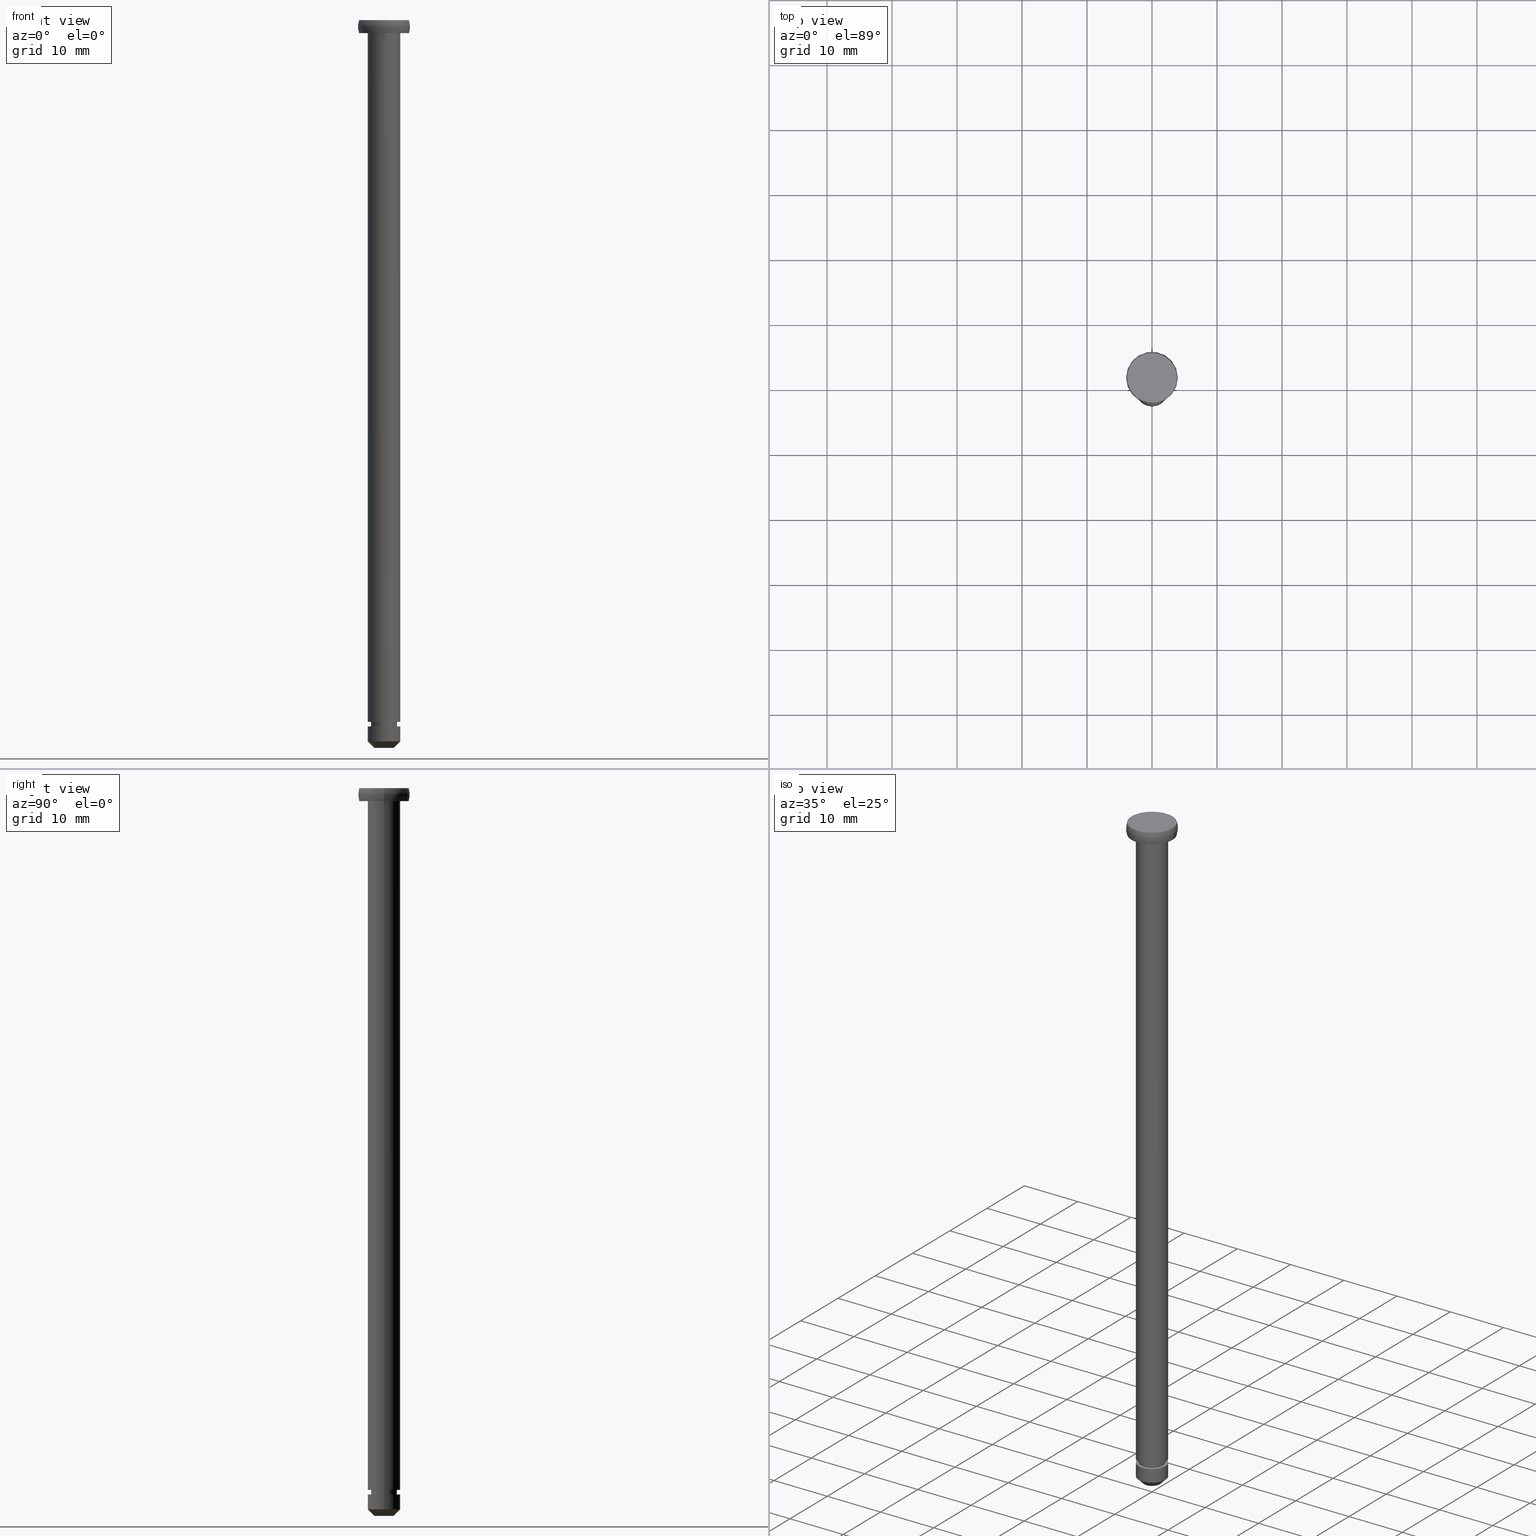
[diagram: canonical four-view strip — front | top / right | iso, engineering-drawing reading convention]
A machine part, canonical four-view strip (front | top / right | iso — engineering-drawing reading convention). The complete STEP part file that produces these views, byte-faithful:
ISO-10303-21;
HEADER;
FILE_DESCRIPTION (( 'STEP AP214' ),
    '1' );
FILE_NAME ('TH_121SUS_5_110.STEP',
    '2016-08-24T05:25:52',
    ( '' ),
    ( '' ),
    'SwSTEP 2.0',
    'SolidWorks 2015',
    '' );
FILE_SCHEMA (( 'AUTOMOTIVE_DESIGN' ));
ENDSEC;

DATA;
#1 = ORIENTED_EDGE ( 'NONE', *, *, #23, .T. ) ;
#2 = FILL_AREA_STYLE ('',( #293 ) ) ;
#3 = APPLICATION_CONTEXT ( 'automotive_design' ) ;
#4 = EDGE_CURVE ( 'NONE', #396, #7, #67, .T. ) ;
#5 = AXIS2_PLACEMENT_3D ( 'NONE', #357, #228, #389 ) ;
#6 = DIRECTION ( 'NONE',  ( -0.0000000000000000000, -0.0000000000000000000, 1.000000000000000000 ) ) ;
#7 = VERTEX_POINT ( 'NONE', #161 ) ;
#8 = ORIENTED_EDGE ( 'NONE', *, *, #203, .F. ) ;
#9 = FACE_OUTER_BOUND ( 'NONE', #383, .T. ) ;
#10 = ORIENTED_EDGE ( 'NONE', *, *, #375, .F. ) ;
#11 = CARTESIAN_POINT ( 'NONE',  ( 0.0000000000000000000, 0.0000000000000000000, -112.0000000360870000 ) ) ;
#12 = ADVANCED_FACE ( 'NONE', ( #435, #207 ), #83, .T. ) ;
#13 = DIRECTION ( 'NONE',  ( 0.0000000000000000000, 0.0000000000000000000, -1.000000000000000000 ) ) ;
#14 = ORIENTED_EDGE ( 'NONE', *, *, #260, .T. ) ;
#15 = AXIS2_PLACEMENT_3D ( 'NONE', #420, #334, #98 ) ;
#16 = CARTESIAN_POINT ( 'NONE',  ( 2.500000000000000000, 3.061616997868383100E-016, -108.7000000360870000 ) ) ;
#17 = ORIENTED_EDGE ( 'NONE', *, *, #128, .T. ) ;
#18 = ADVANCED_FACE ( 'NONE', ( #265 ), #159, .T. ) ;
#19 = EDGE_LOOP ( 'NONE', ( #230, #354, #84, #166 ) ) ;
#20 = UNCERTAINTY_MEASURE_WITH_UNIT (LENGTH_MEASURE( 1.000000000000000100E-005 ), #359, 'distance_accuracy_value', 'NONE');
#21 = DIRECTION ( 'NONE',  ( -1.000000000000000000, -1.224646799147353200E-016, 0.0000000000000000000 ) ) ;
#22 = DIRECTION ( 'NONE',  ( -1.000000000000000000, 0.0000000000000000000, 0.0000000000000000000 ) ) ;
#23 = EDGE_CURVE ( 'NONE', #149, #225, #208, .T. ) ;
#24 = ORIENTED_EDGE ( 'NONE', *, *, #28, .F. ) ;
#25 = AXIS2_PLACEMENT_3D ( 'NONE', #326, #247, #201 ) ;
#26 = VERTEX_POINT ( 'NONE', #448 ) ;
#27 = CARTESIAN_POINT ( 'NONE',  ( -2.000000000000000000, 0.0000000000000000000, -108.7000000360870000 ) ) ;
#28 = EDGE_CURVE ( 'NONE', #271, #26, #216, .T. ) ;
#29 = CIRCLE ( 'NONE', #184, 3.828427048553670400 ) ;
#30 = AXIS2_PLACEMENT_3D ( 'NONE', #294, #134, #189 ) ;
#31 = CIRCLE ( 'NONE', #205, 3.000000000000000000 ) ;
#32 = DIRECTION ( 'NONE',  ( 0.0000000000000000000, 0.0000000000000000000, -1.000000000000000000 ) ) ;
#33 = ADVANCED_BREP_SHAPE_REPRESENTATION ( '', ( #120, #298 ), #275 ) ;
#34 = DIRECTION ( 'NONE',  ( 0.0000000000000000000, 0.0000000000000000000, -1.000000000000000000 ) ) ;
#35 = DIRECTION ( 'NONE',  ( 0.0000000000000000000, 0.0000000000000000000, 1.000000000000000000 ) ) ;
#36 = AXIS2_PLACEMENT_3D ( 'NONE', #48, #350, #22 ) ;
#37 = SHAPE_DEFINITION_REPRESENTATION ( #105, #258 ) ;
#38 = CARTESIAN_POINT ( 'NONE',  ( 0.0000000000000000000, 0.0000000000000000000, 2.155049632374812200E-007 ) ) ;
#39 = DIRECTION ( 'NONE',  ( -1.000000000000000000, 0.0000000000000000000, 0.0000000000000000000 ) ) ;
#40 = DIRECTION ( 'NONE',  ( 0.0000000000000000000, 0.0000000000000000000, -1.000000000000000000 ) ) ;
#41 = VERTEX_POINT ( 'NONE', #16 ) ;
#42 = CARTESIAN_POINT ( 'NONE',  ( -1.499999999999999600, 1.836970198721029400E-016, -112.0000000360870000 ) ) ;
#43 = FACE_OUTER_BOUND ( 'NONE', #19, .T. ) ;
#44 = ADVANCED_FACE ( 'NONE', ( #132 ), #304, .T. ) ;
#45 = CARTESIAN_POINT ( 'NONE',  ( 2.500000000000000000, 3.061616997868383100E-016, 2.155049632374841000E-007 ) ) ;
#46 = DIRECTION ( 'NONE',  ( 0.0000000000000000000, 0.0000000000000000000, -1.000000000000000000 ) ) ;
#47 = EDGE_LOOP ( 'NONE', ( #453, #302 ) ) ;
#48 = CARTESIAN_POINT ( 'NONE',  ( 0.0000000000000000000, 0.0000000000000000000, 2.155049632374841000E-007 ) ) ;
#49 = EDGE_CURVE ( 'NONE', #149, #281, #289, .T. ) ;
#50 =( GEOMETRIC_REPRESENTATION_CONTEXT ( 3 ) GLOBAL_UNCERTAINTY_ASSIGNED_CONTEXT ( ( #68 ) ) GLOBAL_UNIT_ASSIGNED_CONTEXT ( ( #160, #371, #369 ) ) REPRESENTATION_CONTEXT ( 'NONE', 'WORKASPACE' ) );
#51 = ORIENTED_EDGE ( 'NONE', *, *, #366, .F. ) ;
#52 = ORIENTED_EDGE ( 'NONE', *, *, #176, .F. ) ;
#53 = ORIENTED_EDGE ( 'NONE', *, *, #366, .T. ) ;
#54 = EDGE_CURVE ( 'NONE', #229, #281, #107, .T. ) ;
#55 = AXIS2_PLACEMENT_3D ( 'NONE', #332, #34, #400 ) ;
#56 = ADVANCED_FACE ( 'NONE', ( #348 ), #314, .T. ) ;
#57 = CLOSED_SHELL ( 'NONE', ( #89, #18, #346, #211, #58, #331, #142, #44, #56, #62, #59, #437, #12, #245, #424 ) ) ;
#58 = ADVANCED_FACE ( 'NONE', ( #97 ), #269, .T. ) ;
#59 = ADVANCED_FACE ( 'NONE', ( #305, #231 ), #165, .T. ) ;
#60 = PRESENTATION_LAYER_ASSIGNMENT (  '', '', ( #458 ) ) ;
#61 = EDGE_LOOP ( 'NONE', ( #306, #53 ) ) ;
#62 = ADVANCED_FACE ( 'NONE', ( #355 ), #141, .T. ) ;
#63 = DIRECTION ( 'NONE',  ( 0.0000000000000000000, 0.0000000000000000000, -1.000000000000000000 ) ) ;
#64 = ORIENTED_EDGE ( 'NONE', *, *, #403, .F. ) ;
#65 = CARTESIAN_POINT ( 'NONE',  ( 1.499999999999999600, 0.0000000000000000000, -112.0000000360870000 ) ) ;
#66 = CIRCLE ( 'NONE', #55, 2.500000000000000000 ) ;
#67 = CIRCLE ( 'NONE', #123, 3.000000000000000400 ) ;
#68 = UNCERTAINTY_MEASURE_WITH_UNIT (LENGTH_MEASURE( 1.000000000000000100E-005 ), #160, 'distance_accuracy_value', 'NONE');
#69 = VERTEX_POINT ( 'NONE', #372 ) ;
#70 = CARTESIAN_POINT ( 'NONE',  ( 2.500000000000000000, 3.061616997868383100E-016, -2.000000018043410300 ) ) ;
#71 = EDGE_CURVE ( 'NONE', #69, #121, #335, .T. ) ;
#72 = AXIS2_PLACEMENT_3D ( 'NONE', #178, #300, #118 ) ;
#73 = CARTESIAN_POINT ( 'NONE',  ( -3.828427118366850100, 0.0000000000000000000, -2.000000018043500000 ) ) ;
#74 = VERTEX_POINT ( 'NONE', #329 ) ;
#75 = PLANE ( 'NONE',  #177 ) ;
#76 = ORIENTED_EDGE ( 'NONE', *, *, #102, .T. ) ;
#77 = DIRECTION ( 'NONE',  ( -1.000000000000000000, 0.0000000000000000000, 0.0000000000000000000 ) ) ;
#78 = EDGE_CURVE ( 'NONE', #74, #271, #236, .T. ) ;
#79 = AXIS2_PLACEMENT_3D ( 'NONE', #175, #356, #262 ) ;
#80 =( NAMED_UNIT ( * ) PLANE_ANGLE_UNIT ( ) SI_UNIT ( $, .RADIAN. ) );
#81 = CIRCLE ( 'NONE', #30, 2.500000000000000000 ) ;
#82 = CIRCLE ( 'NONE', #452, 2.000000000000000000 ) ;
#83 = PLANE ( 'NONE',  #197 ) ;
#84 = ORIENTED_EDGE ( 'NONE', *, *, #421, .T. ) ;
#85 = MECHANICAL_DESIGN_GEOMETRIC_PRESENTATION_REPRESENTATION (  '', ( #458 ), #110 ) ;
#86 = VECTOR ( 'NONE', #311, 1000.000000000000000 ) ;
#87 = VERTEX_POINT ( 'NONE', #188 ) ;
#88 = ORIENTED_EDGE ( 'NONE', *, *, #274, .F. ) ;
#89 = ADVANCED_FACE ( 'NONE', ( #347 ), #167, .T. ) ;
#90 = DIRECTION ( 'NONE',  ( -1.224646799147353200E-016, 1.000000000000000000, 0.0000000000000000000 ) ) ;
#91 = EDGE_LOOP ( 'NONE', ( #111, #181, #17, #193 ) ) ;
#92 = ORIENTED_EDGE ( 'NONE', *, *, #441, .T. ) ;
#93 = SURFACE_STYLE_FILL_AREA ( #297 ) ;
#94 = EDGE_CURVE ( 'NONE', #415, #26, #456, .T. ) ;
#95 = PRODUCT_DEFINITION ( 'UNKNOWN', '', #224, #209 ) ;
#96 = CARTESIAN_POINT ( 'NONE',  ( 0.0000000000000000000, 0.0000000000000000000, -111.0000000360870000 ) ) ;
#97 = FACE_OUTER_BOUND ( 'NONE', #157, .T. ) ;
#98 = DIRECTION ( 'NONE',  ( -1.000000000000000000, 0.0000000000000000000, 0.0000000000000000000 ) ) ;
#99 = ORIENTED_EDGE ( 'NONE', *, *, #155, .F. ) ;
#100 = EDGE_LOOP ( 'NONE', ( #235, #309 ) ) ;
#101 = CARTESIAN_POINT ( 'NONE',  ( 0.0000000000000000000, 0.0000000000000000000, -108.7000000360870000 ) ) ;
#102 = EDGE_CURVE ( 'NONE', #74, #415, #406, .T. ) ;
#103 = AXIS2_PLACEMENT_3D ( 'NONE', #101, #219, #240 ) ;
#104 = FILL_AREA_STYLE_COLOUR ( '', #195 ) ;
#105 = PRODUCT_DEFINITION_SHAPE ( 'NONE', 'NONE',  #95 ) ;
#106 = CARTESIAN_POINT ( 'NONE',  ( 0.0000000000000000000, 0.0000000000000000000, 2.155049632374812200E-007 ) ) ;
#107 = CIRCLE ( 'NONE', #286, 2.499999999999998700 ) ;
#108 = DIRECTION ( 'NONE',  ( 0.0000000000000000000, 0.0000000000000000000, -1.000000000000000000 ) ) ;
#109 =( LENGTH_UNIT ( ) NAMED_UNIT ( * ) SI_UNIT ( .MILLI., .METRE. ) );
#110 =( GEOMETRIC_REPRESENTATION_CONTEXT ( 3 ) GLOBAL_UNCERTAINTY_ASSIGNED_CONTEXT ( ( #20 ) ) GLOBAL_UNIT_ASSIGNED_CONTEXT ( ( #359, #80, #148 ) ) REPRESENTATION_CONTEXT ( 'NONE', 'WORKASPACE' ) );
#111 = ORIENTED_EDGE ( 'NONE', *, *, #23, .F. ) ;
#112 = FACE_OUTER_BOUND ( 'NONE', #423, .T. ) ;
#113 = APPLICATION_PROTOCOL_DEFINITION ( 'draft international standard', 'automotive_design', 1998, #451 ) ;
#114 = CARTESIAN_POINT ( 'NONE',  ( 2.500000000000000000, 0.0000000000000000000, -2.000000018043454700 ) ) ;
#115 = ORIENTED_EDGE ( 'NONE', *, *, #320, .T. ) ;
#116 = CARTESIAN_POINT ( 'NONE',  ( 0.0000000000000000000, 0.0000000000000000000, -108.7000000360870000 ) ) ;
#117 = ORIENTED_EDGE ( 'NONE', *, *, #4, .F. ) ;
#118 = DIRECTION ( 'NONE',  ( 1.000000000000000000, 0.0000000000000000000, 0.0000000000000000000 ) ) ;
#119 = DIRECTION ( 'NONE',  ( -1.000000000000000000, 0.0000000000000000000, 0.0000000000000000000 ) ) ;
#120 = MANIFOLD_SOLID_BREP ( '��]1', #57 ) ;
#121 = VERTEX_POINT ( 'NONE', #273 ) ;
#122 = CARTESIAN_POINT ( 'NONE',  ( 0.0000000000000000000, 0.0000000000000000000, 2.155049632374841000E-007 ) ) ;
#123 = AXIS2_PLACEMENT_3D ( 'NONE', #127, #90, #21 ) ;
#124 = APPLICATION_PROTOCOL_DEFINITION ( 'draft international standard', 'automotive_design', 1998, #307 ) ;
#125 = CONTEXT_DEPENDENT_SHAPE_REPRESENTATION ( #272, #374 ) ;
#126 = DIRECTION ( 'NONE',  ( 0.0000000000000000000, 0.0000000000000000000, -1.000000000000000000 ) ) ;
#127 = CARTESIAN_POINT ( 'NONE',  ( 1.000000000000000000, 1.224646799147353200E-016, -1.000000000000000000 ) ) ;
#128 = EDGE_CURVE ( 'NONE', #281, #229, #308, .T. ) ;
#129 = VECTOR ( 'NONE', #234, 1000.000000000000000 ) ;
#130 = DIRECTION ( 'NONE',  ( -1.000000000000000000, 0.0000000000000000000, -0.0000000000000000000 ) ) ;
#131 = ORIENTED_EDGE ( 'NONE', *, *, #155, .T. ) ;
#132 = FACE_OUTER_BOUND ( 'NONE', #226, .T. ) ;
#133 = ORIENTED_EDGE ( 'NONE', *, *, #421, .F. ) ;
#134 = DIRECTION ( 'NONE',  ( 0.0000000000000000000, 0.0000000000000000000, -1.000000000000000000 ) ) ;
#135 = SHAPE_DEFINITION_REPRESENTATION ( #280, #409 ) ;
#136 = EDGE_LOOP ( 'NONE', ( #117, #131, #433, #52 ) ) ;
#137 = AXIS2_PLACEMENT_3D ( 'NONE', #292, #108, #119 ) ;
#138 = DIRECTION ( 'NONE',  ( -1.000000000000000000, 0.0000000000000000000, 0.0000000000000000000 ) ) ;
#139 = SURFACE_STYLE_USAGE ( .BOTH. , #146 ) ;
#140 = CIRCLE ( 'NONE', #158, 2.500000000000000000 ) ;
#141 = CYLINDRICAL_SURFACE ( 'NONE', #15, 2.499999999999999600 ) ;
#142 = ADVANCED_FACE ( 'NONE', ( #9 ), #192, .T. ) ;
#143 = CARTESIAN_POINT ( 'NONE',  ( 0.0000000000000000000, 0.0000000000000000000, -108.0000000360869900 ) ) ;
#144 = CARTESIAN_POINT ( 'NONE',  ( 0.0000000000000000000, 0.0000000000000000000, 0.0000000000000000000 ) ) ;
#145 = PRODUCT_DEFINITION ( 'UNKNOWN', '', #170, #438 ) ;
#146 = SURFACE_SIDE_STYLE ('',( #93 ) ) ;
#147 = DIRECTION ( 'NONE',  ( 0.0000000000000000000, 0.0000000000000000000, -1.000000000000000000 ) ) ;
#148 =( NAMED_UNIT ( * ) SI_UNIT ( $, .STERADIAN. ) SOLID_ANGLE_UNIT ( ) );
#149 = VERTEX_POINT ( 'NONE', #402 ) ;
#150 = CARTESIAN_POINT ( 'NONE',  ( 0.0000000000000000000, 0.0000000000000000000, -108.7000000360870000 ) ) ;
#151 =( NAMED_UNIT ( * ) SI_UNIT ( $, .STERADIAN. ) SOLID_ANGLE_UNIT ( ) );
#152 = FACE_BOUND ( 'NONE', #218, .T. ) ;
#153 = ORIENTED_EDGE ( 'NONE', *, *, #54, .T. ) ;
#154 = DIRECTION ( 'NONE',  ( -1.000000000000000000, 0.0000000000000000000, 0.0000000000000000000 ) ) ;
#155 = EDGE_CURVE ( 'NONE', #396, #301, #29, .T. ) ;
#156 = CARTESIAN_POINT ( 'NONE',  ( 0.0000000000000000000, 0.0000000000000000000, -2.000000018043500000 ) ) ;
#157 = EDGE_LOOP ( 'NONE', ( #115, #378, #88, #221 ) ) ;
#158 = AXIS2_PLACEMENT_3D ( 'NONE', #358, #462, #313 ) ;
#159 = CYLINDRICAL_SURFACE ( 'NONE', #250, 2.000000000000000000 ) ;
#160 =( LENGTH_UNIT ( ) NAMED_UNIT ( * ) SI_UNIT ( .MILLI., .METRE. ) );
#161 = CARTESIAN_POINT ( 'NONE',  ( 3.828427118366850100, 4.688471016276889000E-016, -2.000000018043500000 ) ) ;
#162 = ORIENTED_EDGE ( 'NONE', *, *, #102, .F. ) ;
#163 = FACE_OUTER_BOUND ( 'NONE', #136, .T. ) ;
#164 = VECTOR ( 'NONE', #397, 1000.000000000000000 ) ;
#165 = PLANE ( 'NONE',  #434 ) ;
#166 = ORIENTED_EDGE ( 'NONE', *, *, #260, .F. ) ;
#167 = CYLINDRICAL_SURFACE ( 'NONE', #36, 2.500000000000000000 ) ;
#168 = DIRECTION ( 'NONE',  ( 0.0000000000000000000, 0.0000000000000000000, -1.000000000000000000 ) ) ;
#169 = AXIS2_PLACEMENT_3D ( 'NONE', #422, #368, #199 ) ;
#170 = PRODUCT_DEFINITION_FORMATION_WITH_SPECIFIED_SOURCE ( 'ANY', '', #363, .NOT_KNOWN. ) ;
#171 = ORIENTED_EDGE ( 'NONE', *, *, #78, .F. ) ;
#172 = CARTESIAN_POINT ( 'NONE',  ( 2.500000000000000000, 0.0000000000000000000, -108.7000000360870000 ) ) ;
#173 = DIRECTION ( 'NONE',  ( -1.000000000000000000, 0.0000000000000000000, 0.0000000000000000000 ) ) ;
#174 = CARTESIAN_POINT ( 'NONE',  ( -2.500000000000000000, 0.0000000000000000000, -108.0000000360869900 ) ) ;
#175 = CARTESIAN_POINT ( 'NONE',  ( 0.0000000000000000000, 0.0000000000000000000, 2.155049632374841000E-007 ) ) ;
#176 = EDGE_CURVE ( 'NONE', #7, #447, #380, .T. ) ;
#177 = AXIS2_PLACEMENT_3D ( 'NONE', #114, #440, #463 ) ;
#178 = CARTESIAN_POINT ( 'NONE',  ( 0.0000000000000000000, 0.0000000000000000000, 0.0000000000000000000 ) ) ;
#179 =( NAMED_UNIT ( * ) PLANE_ANGLE_UNIT ( ) SI_UNIT ( $, .RADIAN. ) );
#180 = ORIENTED_EDGE ( 'NONE', *, *, #94, .F. ) ;
#181 = ORIENTED_EDGE ( 'NONE', *, *, #49, .T. ) ;
#182 = CARTESIAN_POINT ( 'NONE',  ( 3.828427048553670400, 0.0000000000000000000, 2.155049632374826500E-007 ) ) ;
#183 = DIRECTION ( 'NONE',  ( 0.0000000000000000000, 0.0000000000000000000, -1.000000000000000000 ) ) ;
#184 = AXIS2_PLACEMENT_3D ( 'NONE', #38, #147, #196 ) ;
#185 = CARTESIAN_POINT ( 'NONE',  ( 0.0000000000000000000, 0.0000000000000000000, -112.0000000360870000 ) ) ;
#186 = DIRECTION ( 'NONE',  ( -1.000000000000000000, 0.0000000000000000000, 0.0000000000000000000 ) ) ;
#187 = ORIENTED_EDGE ( 'NONE', *, *, #78, .T. ) ;
#188 = CARTESIAN_POINT ( 'NONE',  ( -2.000000000000000000, 0.0000000000000000000, -108.0000000360869900 ) ) ;
#189 = DIRECTION ( 'NONE',  ( -1.000000000000000000, 0.0000000000000000000, 0.0000000000000000000 ) ) ;
#190 = DIRECTION ( 'NONE',  ( 0.0000000000000000000, 0.0000000000000000000, -1.000000000000000000 ) ) ;
#191 = DIRECTION ( 'NONE',  ( 1.000000000000000000, 0.0000000000000000000, 0.0000000000000000000 ) ) ;
#192 = PLANE ( 'NONE',  #214 ) ;
#193 = ORIENTED_EDGE ( 'NONE', *, *, #441, .F. ) ;
#194 = ORIENTED_EDGE ( 'NONE', *, *, #239, .T. ) ;
#195 = COLOUR_RGB ( '',0.7921568627450980000, 0.8196078431372548800, 0.9333333333333333500 ) ;
#196 = DIRECTION ( 'NONE',  ( -1.000000000000000000, 0.0000000000000000000, 0.0000000000000000000 ) ) ;
#197 = AXIS2_PLACEMENT_3D ( 'NONE', #379, #443, #130 ) ;
#198 = PRODUCT_RELATED_PRODUCT_CATEGORY ( 'part', '', ( #363 ) ) ;
#199 = DIRECTION ( 'NONE',  ( -1.000000000000000000, 0.0000000000000000000, 0.0000000000000000000 ) ) ;
#200 = DIRECTION ( 'NONE',  ( -0.7071067811865469100, 8.659560562354925500E-017, 0.7071067811865482400 ) ) ;
#201 = DIRECTION ( 'NONE',  ( 1.000000000000000000, 0.0000000000000000000, 0.0000000000000000000 ) ) ;
#202 = DIRECTION ( 'NONE',  ( 0.0000000000000000000, 0.0000000000000000000, -1.000000000000000000 ) ) ;
#203 = EDGE_CURVE ( 'NONE', #225, #149, #237, .T. ) ;
#204 = VECTOR ( 'NONE', #13, 1000.000000000000000 ) ;
#205 = AXIS2_PLACEMENT_3D ( 'NONE', #360, #393, #212 ) ;
#206 = ORIENTED_EDGE ( 'NONE', *, *, #203, .T. ) ;
#207 = FACE_BOUND ( 'NONE', #220, .T. ) ;
#208 = CIRCLE ( 'NONE', #223, 1.499999999999999600 ) ;
#209 = PRODUCT_DEFINITION_CONTEXT ( 'detailed design', #451, 'design' ) ;
#210 = ORIENTED_EDGE ( 'NONE', *, *, #54, .F. ) ;
#211 = ADVANCED_FACE ( 'NONE', ( #317 ), #388, .T. ) ;
#212 = DIRECTION ( 'NONE',  ( 0.0000000000000000000, 0.0000000000000000000, -1.000000000000000000 ) ) ;
#213 = ORIENTED_EDGE ( 'NONE', *, *, #296, .F. ) ;
#214 = AXIS2_PLACEMENT_3D ( 'NONE', #182, #401, #268 ) ;
#215 = COLOUR_RGB ( '',0.7921568627450980000, 0.8196078431372548800, 0.9333333333333333500 ) ;
#216 = CIRCLE ( 'NONE', #169, 2.500000000000000000 ) ;
#217 = DIRECTION ( 'NONE',  ( -1.000000000000000000, 0.0000000000000000000, 0.0000000000000000000 ) ) ;
#218 = EDGE_LOOP ( 'NONE', ( #162, #432 ) ) ;
#219 = DIRECTION ( 'NONE',  ( 0.0000000000000000000, 0.0000000000000000000, -1.000000000000000000 ) ) ;
#220 = EDGE_LOOP ( 'NONE', ( #427, #213 ) ) ;
#221 = ORIENTED_EDGE ( 'NONE', *, *, #464, .F. ) ;
#222 = UNCERTAINTY_MEASURE_WITH_UNIT (LENGTH_MEASURE( 1.000000000000000100E-005 ), #109, 'distance_accuracy_value', 'NONE');
#223 = AXIS2_PLACEMENT_3D ( 'NONE', #414, #338, #408 ) ;
#224 = PRODUCT_DEFINITION_FORMATION_WITH_SPECIFIED_SOURCE ( 'ANY', '', #425, .NOT_KNOWN. ) ;
#225 = VERTEX_POINT ( 'NONE', #270 ) ;
#226 = EDGE_LOOP ( 'NONE', ( #206, #1 ) ) ;
#227 = DIRECTION ( 'NONE',  ( 0.0000000000000000000, 0.0000000000000000000, 1.000000000000000000 ) ) ;
#228 = DIRECTION ( 'NONE',  ( 0.0000000000000000000, 0.0000000000000000000, -1.000000000000000000 ) ) ;
#229 = VERTEX_POINT ( 'NONE', #266 ) ;
#230 = ORIENTED_EDGE ( 'NONE', *, *, #71, .F. ) ;
#231 = FACE_OUTER_BOUND ( 'NONE', #47, .T. ) ;
#232 = SURFACE_STYLE_USAGE ( .BOTH. , #295 ) ;
#233 = DIRECTION ( 'NONE',  ( 0.0000000000000000000, 0.0000000000000000000, -1.000000000000000000 ) ) ;
#234 = DIRECTION ( 'NONE',  ( 0.7071067811865469100, 0.0000000000000000000, 0.7071067811865482400 ) ) ;
#235 = ORIENTED_EDGE ( 'NONE', *, *, #274, .T. ) ;
#236 = LINE ( 'NONE', #242, #284 ) ;
#237 = CIRCLE ( 'NONE', #267, 1.499999999999999600 ) ;
#238 = CYLINDRICAL_SURFACE ( 'NONE', #261, 2.000000000000000000 ) ;
#239 = EDGE_CURVE ( 'NONE', #439, #281, #390, .T. ) ;
#240 = DIRECTION ( 'NONE',  ( -1.000000000000000000, 0.0000000000000000000, 0.0000000000000000000 ) ) ;
#241 = AXIS2_PLACEMENT_3D ( 'NONE', #150, #40, #461 ) ;
#242 = CARTESIAN_POINT ( 'NONE',  ( -2.500000000000000000, 0.0000000000000000000, 2.155049632374841000E-007 ) ) ;
#243 = DIRECTION ( 'NONE',  ( 1.000000000000000000, 0.0000000000000000000, 0.0000000000000000000 ) ) ;
#244 = AXIS2_PLACEMENT_3D ( 'NONE', #364, #190, #325 ) ;
#245 = ADVANCED_FACE ( 'NONE', ( #419 ), #377, .T. ) ;
#246 = VECTOR ( 'NONE', #200, 1000.000000000000000 ) ;
#247 = DIRECTION ( 'NONE',  ( 0.0000000000000000000, 0.0000000000000000000, 1.000000000000000000 ) ) ;
#248 = CIRCLE ( 'NONE', #241, 2.500000000000000000 ) ;
#249 = DIRECTION ( 'NONE',  ( -1.000000000000000000, 0.0000000000000000000, -0.0000000000000000000 ) ) ;
#250 = AXIS2_PLACEMENT_3D ( 'NONE', #122, #252, #457 ) ;
#251 = PRODUCT_RELATED_PRODUCT_CATEGORY ( 'part', '', ( #425 ) ) ;
#252 = DIRECTION ( 'NONE',  ( 0.0000000000000000000, 0.0000000000000000000, -1.000000000000000000 ) ) ;
#253 =( NAMED_UNIT ( * ) PLANE_ANGLE_UNIT ( ) SI_UNIT ( $, .RADIAN. ) );
#254 = CARTESIAN_POINT ( 'NONE',  ( -2.499999999999998700, 3.061616997868381200E-016, -111.0000000360870000 ) ) ;
#255 = CIRCLE ( 'NONE', #430, 3.828427048553670400 ) ;
#256 = CARTESIAN_POINT ( 'NONE',  ( 0.0000000000000000000, 0.0000000000000000000, 0.0000000000000000000 ) ) ;
#257 = CIRCLE ( 'NONE', #103, 2.000000000000000000 ) ;
#258 = SHAPE_REPRESENTATION ( 'shaft', ( #298 ), #275 ) ;
#259 = CARTESIAN_POINT ( 'NONE',  ( -3.828427048553670400, 0.0000000000000000000, 2.155049632374812200E-007 ) ) ;
#260 = EDGE_CURVE ( 'NONE', #121, #399, #370, .T. ) ;
#261 = AXIS2_PLACEMENT_3D ( 'NONE', #436, #404, #322 ) ;
#262 = DIRECTION ( 'NONE',  ( -1.000000000000000000, 0.0000000000000000000, 0.0000000000000000000 ) ) ;
#263 = PRESENTATION_STYLE_ASSIGNMENT (( #232 ) ) ;
#264 = CYLINDRICAL_SURFACE ( 'NONE', #79, 2.499999999999999600 ) ;
#265 = FACE_OUTER_BOUND ( 'NONE', #279, .T. ) ;
#266 = CARTESIAN_POINT ( 'NONE',  ( 2.499999999999998700, 0.0000000000000000000, -111.0000000360870000 ) ) ;
#267 = AXIS2_PLACEMENT_3D ( 'NONE', #327, #285, #186 ) ;
#268 = DIRECTION ( 'NONE',  ( 1.000000000000000000, 0.0000000000000000000, 0.0000000000000000000 ) ) ;
#269 = TOROIDAL_SURFACE ( 'NONE', #385, 1.000000000000000000, 3.000000000000000400 ) ;
#270 = CARTESIAN_POINT ( 'NONE',  ( 1.499999999999999600, 0.0000000000000000000, -112.0000000360870000 ) ) ;
#271 = VERTEX_POINT ( 'NONE', #174 ) ;
#272 =( REPRESENTATION_RELATIONSHIP ('NONE','NONE', #409, #258 ) REPRESENTATION_RELATIONSHIP_WITH_TRANSFORMATION ( #412 )SHAPE_REPRESENTATION_RELATIONSHIP( ) );
#273 = CARTESIAN_POINT ( 'NONE',  ( 2.000000000000000000, 2.449293598294706400E-016, -108.7000000360870000 ) ) ;
#274 = EDGE_CURVE ( 'NONE', #447, #7, #282, .T. ) ;
#275 =( GEOMETRIC_REPRESENTATION_CONTEXT ( 3 ) GLOBAL_UNCERTAINTY_ASSIGNED_CONTEXT ( ( #222 ) ) GLOBAL_UNIT_ASSIGNED_CONTEXT ( ( #109, #253, #426 ) ) REPRESENTATION_CONTEXT ( 'NONE', 'WORKASPACE' ) );
#276 = CARTESIAN_POINT ( 'NONE',  ( 0.0000000000000000000, 0.0000000000000000000, -1.000000000000000000 ) ) ;
#277 = DIRECTION ( 'NONE',  ( 1.000000000000000000, 0.0000000000000000000, 0.0000000000000000000 ) ) ;
#278 = AXIS2_PLACEMENT_3D ( 'NONE', #185, #365, #191 ) ;
#279 = EDGE_LOOP ( 'NONE', ( #288, #459, #64, #133 ) ) ;
#280 = PRODUCT_DEFINITION_SHAPE ( 'NONE', 'NONE',  #145 ) ;
#281 = VERTEX_POINT ( 'NONE', #254 ) ;
#282 = CIRCLE ( 'NONE', #303, 3.828427118366850100 ) ;
#283 = DIRECTION ( 'NONE',  ( 0.0000000000000000000, 0.0000000000000000000, -1.000000000000000000 ) ) ;
#284 = VECTOR ( 'NONE', #202, 1000.000000000000000 ) ;
#285 = DIRECTION ( 'NONE',  ( 0.0000000000000000000, 0.0000000000000000000, -1.000000000000000000 ) ) ;
#286 = AXIS2_PLACEMENT_3D ( 'NONE', #96, #168, #154 ) ;
#287 =( LENGTH_UNIT ( ) NAMED_UNIT ( * ) SI_UNIT ( .MILLI., .METRE. ) );
#288 = ORIENTED_EDGE ( 'NONE', *, *, #342, .T. ) ;
#289 = LINE ( 'NONE', #42, #246 ) ;
#290 = APPLICATION_PROTOCOL_DEFINITION ( 'draft international standard', 'automotive_design', 1998, #446 ) ;
#291 = DIRECTION ( 'NONE',  ( 0.0000000000000000000, 0.0000000000000000000, -1.000000000000000000 ) ) ;
#292 = CARTESIAN_POINT ( 'NONE',  ( 0.0000000000000000000, 0.0000000000000000000, -111.0000000360870000 ) ) ;
#293 = FILL_AREA_STYLE_COLOUR ( '', #215 ) ;
#294 = CARTESIAN_POINT ( 'NONE',  ( 0.0000000000000000000, 0.0000000000000000000, -2.000000018043410300 ) ) ;
#295 = SURFACE_SIDE_STYLE ('',( #386 ) ) ;
#296 = EDGE_CURVE ( 'NONE', #69, #87, #343, .T. ) ;
#297 = FILL_AREA_STYLE ('',( #104 ) ) ;
#298 = AXIS2_PLACEMENT_3D ( 'NONE', #144, #227, #277 ) ;
#299 = ORIENTED_EDGE ( 'NONE', *, *, #403, .T. ) ;
#300 = DIRECTION ( 'NONE',  ( 0.0000000000000000000, 0.0000000000000000000, 1.000000000000000000 ) ) ;
#301 = VERTEX_POINT ( 'NONE', #259 ) ;
#302 = ORIENTED_EDGE ( 'NONE', *, *, #450, .F. ) ;
#303 = AXIS2_PLACEMENT_3D ( 'NONE', #156, #319, #217 ) ;
#304 = PLANE ( 'NONE',  #312 ) ;
#305 = FACE_BOUND ( 'NONE', #382, .T. ) ;
#306 = ORIENTED_EDGE ( 'NONE', *, *, #28, .T. ) ;
#307 = APPLICATION_CONTEXT ( 'automotive_design' ) ;
#308 = CIRCLE ( 'NONE', #137, 2.499999999999998700 ) ;
#309 = ORIENTED_EDGE ( 'NONE', *, *, #176, .T. ) ;
#310 = ORIENTED_EDGE ( 'NONE', *, *, #128, .F. ) ;
#311 = DIRECTION ( 'NONE',  ( 0.0000000000000000000, 0.0000000000000000000, -1.000000000000000000 ) ) ;
#312 = AXIS2_PLACEMENT_3D ( 'NONE', #418, #126, #249 ) ;
#313 = DIRECTION ( 'NONE',  ( -1.000000000000000000, 0.0000000000000000000, 0.0000000000000000000 ) ) ;
#314 = CONICAL_SURFACE ( 'NONE', #333, 1.499999999999999600, 0.7853981633974473900 ) ;
#315 = EDGE_LOOP ( 'NONE', ( #180, #455, #187, #51 ) ) ;
#316 = UNCERTAINTY_MEASURE_WITH_UNIT (LENGTH_MEASURE( 1.000000000000000100E-005 ), #287, 'distance_accuracy_value', 'NONE');
#317 = FACE_OUTER_BOUND ( 'NONE', #91, .T. ) ;
#318 = LINE ( 'NONE', #65, #129 ) ;
#319 = DIRECTION ( 'NONE',  ( 0.0000000000000000000, 0.0000000000000000000, -1.000000000000000000 ) ) ;
#320 = EDGE_CURVE ( 'NONE', #301, #396, #255, .T. ) ;
#321 = STYLED_ITEM ( 'NONE', ( #465 ), #33 ) ;
#322 = DIRECTION ( 'NONE',  ( -1.000000000000000000, 0.0000000000000000000, 0.0000000000000000000 ) ) ;
#323 = CARTESIAN_POINT ( 'NONE',  ( -2.500000000000000000, 0.0000000000000000000, -108.7000000360870000 ) ) ;
#324 = AXIS2_PLACEMENT_3D ( 'NONE', #116, #63, #467 ) ;
#325 = DIRECTION ( 'NONE',  ( -1.000000000000000000, 0.0000000000000000000, 0.0000000000000000000 ) ) ;
#326 = CARTESIAN_POINT ( 'NONE',  ( 0.0000000000000000000, 0.0000000000000000000, 0.0000000000000000000 ) ) ;
#327 = CARTESIAN_POINT ( 'NONE',  ( 0.0000000000000000000, 0.0000000000000000000, -112.0000000360870000 ) ) ;
#328 = VECTOR ( 'NONE', #32, 1000.000000000000000 ) ;
#329 = CARTESIAN_POINT ( 'NONE',  ( -2.500000000000000000, 0.0000000000000000000, -2.000000018043410300 ) ) ;
#330 = ORIENTED_EDGE ( 'NONE', *, *, #239, .F. ) ;
#331 = ADVANCED_FACE ( 'NONE', ( #163 ), #344, .T. ) ;
#332 = CARTESIAN_POINT ( 'NONE',  ( 0.0000000000000000000, 0.0000000000000000000, -108.0000000360869900 ) ) ;
#333 = AXIS2_PLACEMENT_3D ( 'NONE', #11, #6, #243 ) ;
#334 = DIRECTION ( 'NONE',  ( 0.0000000000000000000, 0.0000000000000000000, -1.000000000000000000 ) ) ;
#335 = LINE ( 'NONE', #336, #204 ) ;
#336 = CARTESIAN_POINT ( 'NONE',  ( 2.000000000000000000, 2.449293598294706400E-016, 2.155049632374841000E-007 ) ) ;
#337 = ORIENTED_EDGE ( 'NONE', *, *, #450, .T. ) ;
#338 = DIRECTION ( 'NONE',  ( 0.0000000000000000000, 0.0000000000000000000, -1.000000000000000000 ) ) ;
#339 = FACE_OUTER_BOUND ( 'NONE', #100, .T. ) ;
#340 = PRODUCT_CONTEXT ( 'NONE', #3, 'mechanical' ) ;
#341 = VECTOR ( 'NONE', #291, 1000.000000000000000 ) ;
#342 = EDGE_CURVE ( 'NONE', #87, #69, #82, .T. ) ;
#343 = CIRCLE ( 'NONE', #373, 2.000000000000000000 ) ;
#344 = TOROIDAL_SURFACE ( 'NONE', #5, 1.000000000000000000, 3.000000000000000400 ) ;
#345 = PRESENTATION_LAYER_ASSIGNMENT (  '', '', ( #321 ) ) ;
#346 = ADVANCED_FACE ( 'NONE', ( #112 ), #264, .T. ) ;
#347 = FACE_OUTER_BOUND ( 'NONE', #442, .T. ) ;
#348 = FACE_OUTER_BOUND ( 'NONE', #392, .T. ) ;
#349 = CARTESIAN_POINT ( 'NONE',  ( 0.0000000000000000000, 0.0000000000000000000, 2.155049632374841000E-007 ) ) ;
#350 = DIRECTION ( 'NONE',  ( 0.0000000000000000000, 0.0000000000000000000, -1.000000000000000000 ) ) ;
#351 = CARTESIAN_POINT ( 'NONE',  ( 0.0000000000000000000, 0.0000000000000000000, -108.0000000360869900 ) ) ;
#352 = AXIS2_PLACEMENT_3D ( 'NONE', #349, #233, #39 ) ;
#353 = CARTESIAN_POINT ( 'NONE',  ( 2.499999999999999600, 3.061616997868382600E-016, 2.155049632374841000E-007 ) ) ;
#354 = ORIENTED_EDGE ( 'NONE', *, *, #296, .T. ) ;
#355 = FACE_OUTER_BOUND ( 'NONE', #391, .T. ) ;
#356 = DIRECTION ( 'NONE',  ( 0.0000000000000000000, 0.0000000000000000000, -1.000000000000000000 ) ) ;
#357 = CARTESIAN_POINT ( 'NONE',  ( 0.0000000000000000000, 0.0000000000000000000, -1.000000000000000000 ) ) ;
#358 = CARTESIAN_POINT ( 'NONE',  ( 0.0000000000000000000, 0.0000000000000000000, -108.7000000360870000 ) ) ;
#359 =( LENGTH_UNIT ( ) NAMED_UNIT ( * ) SI_UNIT ( .MILLI., .METRE. ) );
#360 = CARTESIAN_POINT ( 'NONE',  ( -1.000000000000000000, 0.0000000000000000000, -1.000000000000000000 ) ) ;
#361 = DIRECTION ( 'NONE',  ( -1.000000000000000000, 0.0000000000000000000, 0.0000000000000000000 ) ) ;
#362 = ORIENTED_EDGE ( 'NONE', *, *, #94, .T. ) ;
#363 = PRODUCT ( 'TH_121SUS_5_110', 'TH_121SUS_5_110', '', ( #413 ) ) ;
#364 = CARTESIAN_POINT ( 'NONE',  ( 0.0000000000000000000, 0.0000000000000000000, -2.000000018043500000 ) ) ;
#365 = DIRECTION ( 'NONE',  ( -0.0000000000000000000, -0.0000000000000000000, 1.000000000000000000 ) ) ;
#366 = EDGE_CURVE ( 'NONE', #26, #271, #66, .T. ) ;
#367 = MECHANICAL_DESIGN_GEOMETRIC_PRESENTATION_REPRESENTATION (  '', ( #321 ), #395 ) ;
#368 = DIRECTION ( 'NONE',  ( 0.0000000000000000000, 0.0000000000000000000, -1.000000000000000000 ) ) ;
#369 =( NAMED_UNIT ( * ) SI_UNIT ( $, .STERADIAN. ) SOLID_ANGLE_UNIT ( ) );
#370 = CIRCLE ( 'NONE', #324, 2.000000000000000000 ) ;
#371 =( NAMED_UNIT ( * ) PLANE_ANGLE_UNIT ( ) SI_UNIT ( $, .RADIAN. ) );
#372 = CARTESIAN_POINT ( 'NONE',  ( 2.000000000000000000, 2.449293598294706400E-016, -108.0000000360869900 ) ) ;
#373 = AXIS2_PLACEMENT_3D ( 'NONE', #143, #283, #138 ) ;
#374 = PRODUCT_DEFINITION_SHAPE ( 'NONE', 'NONE',  #469 ) ;
#375 = EDGE_CURVE ( 'NONE', #41, #229, #444, .T. ) ;
#376 = DIRECTION ( 'NONE',  ( 1.000000000000000000, 0.0000000000000000000, 0.0000000000000000000 ) ) ;
#377 = CYLINDRICAL_SURFACE ( 'NONE', #352, 2.500000000000000000 ) ;
#378 = ORIENTED_EDGE ( 'NONE', *, *, #4, .T. ) ;
#379 = CARTESIAN_POINT ( 'NONE',  ( 2.000000000000000000, 0.0000000000000000000, -108.0000000360869900 ) ) ;
#380 = CIRCLE ( 'NONE', #244, 3.828427118366850100 ) ;
#381 = DIRECTION ( 'NONE',  ( 0.0000000000000000000, 0.0000000000000000000, -1.000000000000000000 ) ) ;
#382 = EDGE_LOOP ( 'NONE', ( #299, #14 ) ) ;
#383 = EDGE_LOOP ( 'NONE', ( #407, #99 ) ) ;
#384 = DIRECTION ( 'NONE',  ( 0.0000000000000000000, 0.0000000000000000000, -1.000000000000000000 ) ) ;
#385 = AXIS2_PLACEMENT_3D ( 'NONE', #276, #384, #77 ) ;
#386 = SURFACE_STYLE_FILL_AREA ( #2 ) ;
#387 = CARTESIAN_POINT ( 'NONE',  ( -2.499999999999999600, 0.0000000000000000000, 2.155049632374841000E-007 ) ) ;
#388 = CONICAL_SURFACE ( 'NONE', #278, 1.499999999999999600, 0.7853981633974473900 ) ;
#389 = DIRECTION ( 'NONE',  ( -1.000000000000000000, 0.0000000000000000000, 0.0000000000000000000 ) ) ;
#390 = LINE ( 'NONE', #387, #164 ) ;
#391 = EDGE_LOOP ( 'NONE', ( #10, #337, #194, #210 ) ) ;
#392 = EDGE_LOOP ( 'NONE', ( #449, #8, #92, #153 ) ) ;
#393 = DIRECTION ( 'NONE',  ( -0.0000000000000000000, -1.000000000000000000, -0.0000000000000000000 ) ) ;
#394 = EDGE_CURVE ( 'NONE', #415, #74, #81, .T. ) ;
#395 =( GEOMETRIC_REPRESENTATION_CONTEXT ( 3 ) GLOBAL_UNCERTAINTY_ASSIGNED_CONTEXT ( ( #316 ) ) GLOBAL_UNIT_ASSIGNED_CONTEXT ( ( #287, #179, #151 ) ) REPRESENTATION_CONTEXT ( 'NONE', 'WORKASPACE' ) );
#396 = VERTEX_POINT ( 'NONE', #398 ) ;
#397 = DIRECTION ( 'NONE',  ( 0.0000000000000000000, 0.0000000000000000000, -1.000000000000000000 ) ) ;
#398 = CARTESIAN_POINT ( 'NONE',  ( 3.828427048553670400, 4.688470973528645700E-016, 2.155049632374812200E-007 ) ) ;
#399 = VERTEX_POINT ( 'NONE', #27 ) ;
#400 = DIRECTION ( 'NONE',  ( -1.000000000000000000, 0.0000000000000000000, 0.0000000000000000000 ) ) ;
#401 = DIRECTION ( 'NONE',  ( 0.0000000000000000000, -0.0000000000000000000, 1.000000000000000000 ) ) ;
#402 = CARTESIAN_POINT ( 'NONE',  ( -1.499999999999999600, 2.449293598294705400E-016, -112.0000000360870000 ) ) ;
#403 = EDGE_CURVE ( 'NONE', #399, #121, #257, .T. ) ;
#404 = DIRECTION ( 'NONE',  ( 0.0000000000000000000, 0.0000000000000000000, -1.000000000000000000 ) ) ;
#405 = DIRECTION ( 'NONE',  ( -1.000000000000000000, 0.0000000000000000000, 0.0000000000000000000 ) ) ;
#406 = CIRCLE ( 'NONE', #410, 2.500000000000000000 ) ;
#407 = ORIENTED_EDGE ( 'NONE', *, *, #320, .F. ) ;
#408 = DIRECTION ( 'NONE',  ( -1.000000000000000000, 0.0000000000000000000, 0.0000000000000000000 ) ) ;
#409 = SHAPE_REPRESENTATION ( 'TH_121SUS_5_110', ( #72, #25 ), #50 ) ;
#410 = AXIS2_PLACEMENT_3D ( 'NONE', #445, #381, #405 ) ;
#411 = ORIENTED_EDGE ( 'NONE', *, *, #428, .T. ) ;
#412 = ITEM_DEFINED_TRANSFORMATION ( 'NONE', 'NONE', #25,  #298 ) ;
#413 = PRODUCT_CONTEXT ( 'NONE', #446, 'mechanical' ) ;
#414 = CARTESIAN_POINT ( 'NONE',  ( 0.0000000000000000000, 0.0000000000000000000, -112.0000000360870000 ) ) ;
#415 = VERTEX_POINT ( 'NONE', #70 ) ;
#416 = DIRECTION ( 'NONE',  ( 1.000000000000000000, 0.0000000000000000000, 0.0000000000000000000 ) ) ;
#417 = SHAPE_REPRESENTATION_RELATIONSHIP ( 'NONE' , 'NONE' ,  #258, #33 ) ;
#418 = CARTESIAN_POINT ( 'NONE',  ( 0.0000000000000000000, 0.0000000000000000000, -112.0000000360870000 ) ) ;
#419 = FACE_OUTER_BOUND ( 'NONE', #315, .T. ) ;
#420 = CARTESIAN_POINT ( 'NONE',  ( 0.0000000000000000000, 0.0000000000000000000, 2.155049632374841000E-007 ) ) ;
#421 = EDGE_CURVE ( 'NONE', #87, #399, #429, .T. ) ;
#422 = CARTESIAN_POINT ( 'NONE',  ( 0.0000000000000000000, 0.0000000000000000000, -108.0000000360869900 ) ) ;
#423 = EDGE_LOOP ( 'NONE', ( #411, #460, #310, #330 ) ) ;
#424 = ADVANCED_FACE ( 'NONE', ( #339, #152 ), #75, .T. ) ;
#425 = PRODUCT ( 'shaft', 'shaft', '', ( #340 ) ) ;
#426 =( NAMED_UNIT ( * ) SI_UNIT ( $, .STERADIAN. ) SOLID_ANGLE_UNIT ( ) );
#427 = ORIENTED_EDGE ( 'NONE', *, *, #342, .F. ) ;
#428 = EDGE_CURVE ( 'NONE', #439, #41, #140, .T. ) ;
#429 = LINE ( 'NONE', #431, #328 ) ;
#430 = AXIS2_PLACEMENT_3D ( 'NONE', #106, #183, #173 ) ;
#431 = CARTESIAN_POINT ( 'NONE',  ( -2.000000000000000000, 0.0000000000000000000, 2.155049632374841000E-007 ) ) ;
#432 = ORIENTED_EDGE ( 'NONE', *, *, #394, .F. ) ;
#433 = ORIENTED_EDGE ( 'NONE', *, *, #464, .T. ) ;
#434 = AXIS2_PLACEMENT_3D ( 'NONE', #172, #454, #416 ) ;
#435 = FACE_OUTER_BOUND ( 'NONE', #61, .T. ) ;
#436 = CARTESIAN_POINT ( 'NONE',  ( 0.0000000000000000000, 0.0000000000000000000, 2.155049632374841000E-007 ) ) ;
#437 = ADVANCED_FACE ( 'NONE', ( #43 ), #238, .T. ) ;
#438 = PRODUCT_DEFINITION_CONTEXT ( 'detailed design', #307, 'design' ) ;
#439 = VERTEX_POINT ( 'NONE', #323 ) ;
#440 = DIRECTION ( 'NONE',  ( 0.0000000000000000000, 0.0000000000000000000, -1.000000000000000000 ) ) ;
#441 = EDGE_CURVE ( 'NONE', #225, #229, #318, .T. ) ;
#442 = EDGE_LOOP ( 'NONE', ( #76, #362, #24, #171 ) ) ;
#443 = DIRECTION ( 'NONE',  ( 0.0000000000000000000, 0.0000000000000000000, -1.000000000000000000 ) ) ;
#444 = LINE ( 'NONE', #353, #341 ) ;
#445 = CARTESIAN_POINT ( 'NONE',  ( 0.0000000000000000000, 0.0000000000000000000, -2.000000018043410300 ) ) ;
#446 = APPLICATION_CONTEXT ( 'automotive_design' ) ;
#447 = VERTEX_POINT ( 'NONE', #73 ) ;
#448 = CARTESIAN_POINT ( 'NONE',  ( 2.500000000000000000, 3.061616997868383100E-016, -108.0000000360869900 ) ) ;
#449 = ORIENTED_EDGE ( 'NONE', *, *, #49, .F. ) ;
#450 = EDGE_CURVE ( 'NONE', #41, #439, #248, .T. ) ;
#451 = APPLICATION_CONTEXT ( 'automotive_design' ) ;
#452 = AXIS2_PLACEMENT_3D ( 'NONE', #351, #46, #361 ) ;
#453 = ORIENTED_EDGE ( 'NONE', *, *, #428, .F. ) ;
#454 = DIRECTION ( 'NONE',  ( 0.0000000000000000000, -0.0000000000000000000, 1.000000000000000000 ) ) ;
#455 = ORIENTED_EDGE ( 'NONE', *, *, #394, .T. ) ;
#456 = LINE ( 'NONE', #45, #86 ) ;
#457 = DIRECTION ( 'NONE',  ( -1.000000000000000000, 0.0000000000000000000, 0.0000000000000000000 ) ) ;
#458 = STYLED_ITEM ( 'NONE', ( #263 ), #120 ) ;
#459 = ORIENTED_EDGE ( 'NONE', *, *, #71, .T. ) ;
#460 = ORIENTED_EDGE ( 'NONE', *, *, #375, .T. ) ;
#461 = DIRECTION ( 'NONE',  ( -1.000000000000000000, 0.0000000000000000000, 0.0000000000000000000 ) ) ;
#462 = DIRECTION ( 'NONE',  ( 0.0000000000000000000, 0.0000000000000000000, -1.000000000000000000 ) ) ;
#463 = DIRECTION ( 'NONE',  ( -1.000000000000000000, 0.0000000000000000000, -0.0000000000000000000 ) ) ;
#464 = EDGE_CURVE ( 'NONE', #301, #447, #31, .T. ) ;
#465 = PRESENTATION_STYLE_ASSIGNMENT (( #139 ) ) ;
#466 = AXIS2_PLACEMENT_3D ( 'NONE', #256, #35, #376 ) ;
#467 = DIRECTION ( 'NONE',  ( -1.000000000000000000, 0.0000000000000000000, 0.0000000000000000000 ) ) ;
#468 = APPLICATION_PROTOCOL_DEFINITION ( 'draft international standard', 'automotive_design', 1998, #3 ) ;
#469 = NEXT_ASSEMBLY_USAGE_OCCURRENCE ( 'NAUO1', ' ', ' ', #145, #95, $ ) ;
ENDSEC;
END-ISO-10303-21;
